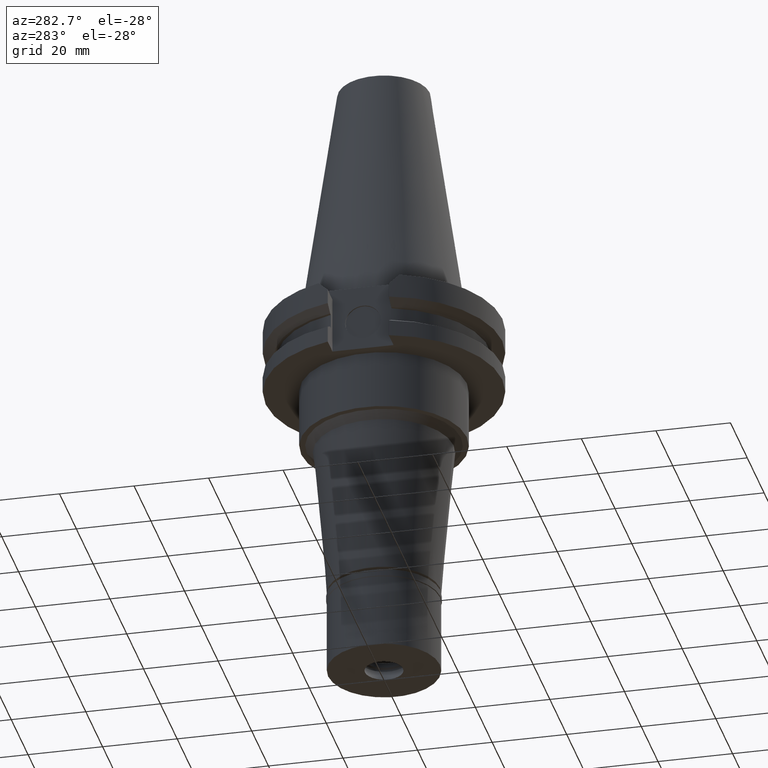
[diagram: clean part render]
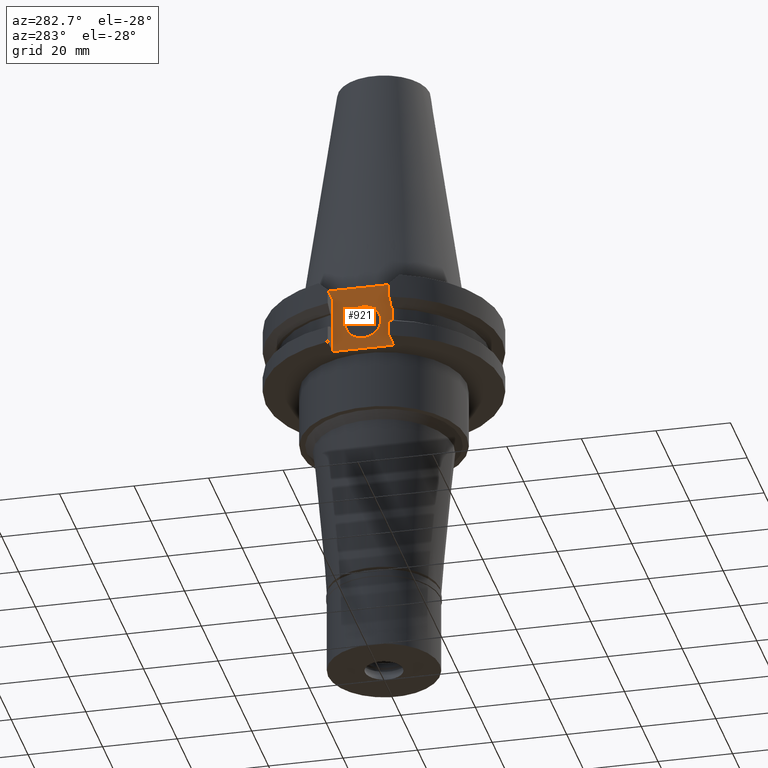
[diagram: same view with one face highlighted and labeled with its STEP entity id]
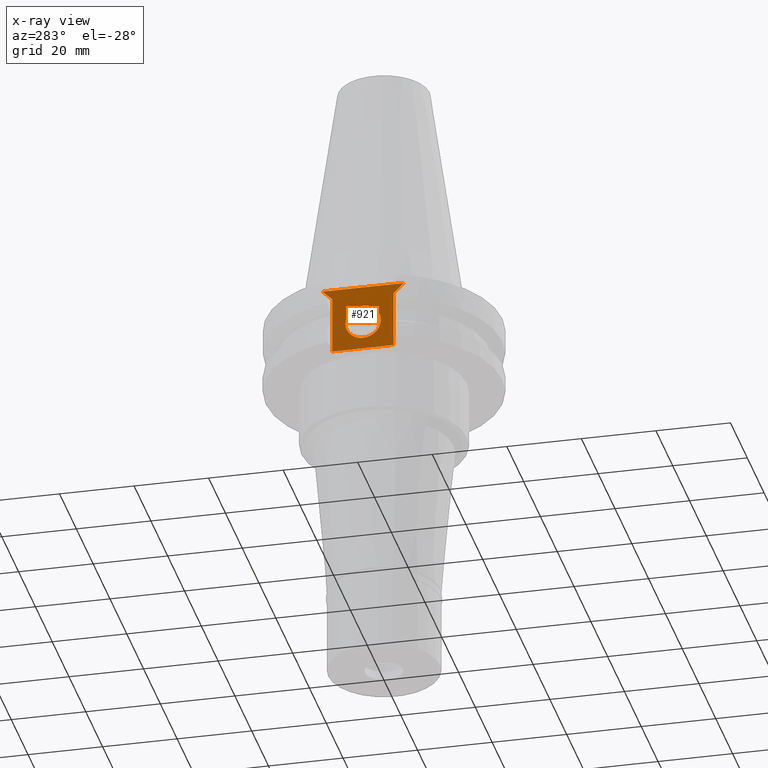
[diagram: x-ray of the same camera — body ghosted, the highlighted face saturated]
A machine part, auxiliary view. The second image highlights one B-rep face of the part: STEP entity #921.
The next image is the same camera in x-ray: the body ghosted, the highlighted face saturated — about 0% of this face is hidden behind the body in this view.
In plain terms, the highlighted planar face has unit normal (1, 0, 0).
Its self-contained STEP definition (entity closure, byte-faithful):
#161 = AXIS2_PLACEMENT_3D ( 'NONE', #2924, #1171, #2997 ) ;
#183 = CARTESIAN_POINT ( 'NONE',  ( -24.98000000000000043, -8.189999999999999503, -19.05000000000000071 ) ) ;
#336 = CARTESIAN_POINT ( 'NONE',  ( -24.98000000000000043, 4.762500000000000178, -11.18000000000000149 ) ) ;
#347 = ORIENTED_EDGE ( 'NONE', *, *, #2015, .F. ) ;
#376 = EDGE_CURVE ( 'NONE', #558, #2594, #843, .T. ) ;
#386 = ORIENTED_EDGE ( 'NONE', *, *, #2966, .F. ) ;
#421 = LINE ( 'NONE', #3046, #1424 ) ;
#435 = VERTEX_POINT ( 'NONE', #2696 ) ;
#456 = CARTESIAN_POINT ( 'NONE',  ( -24.98000000000000043, 10.89000000000000057, -1.000000000000000000 ) ) ;
#543 = EDGE_LOOP ( 'NONE', ( #3184, #2235, #676, #347, #2522, #1452 ) ) ;
#558 = VERTEX_POINT ( 'NONE', #1732 ) ;
#583 = DIRECTION ( 'NONE',  ( 0.0000000000000000000, 0.0000000000000000000, -1.000000000000000000 ) ) ;
#592 = EDGE_CURVE ( 'NONE', #2594, #2220, #702, .T. ) ;
#647 = VECTOR ( 'NONE', #583, 1000.000000000000000 ) ;
#676 = ORIENTED_EDGE ( 'NONE', *, *, #1570, .F. ) ;
#702 = LINE ( 'NONE', #773, #1417 ) ;
#773 = CARTESIAN_POINT ( 'NONE',  ( -24.98000000000000043, 8.189999999999999503, -19.05000000000000071 ) ) ;
#817 = DIRECTION ( 'NONE',  ( 1.000000000000000000, 0.0000000000000000000, 0.0000000000000000000 ) ) ;
#843 = LINE ( 'NONE', #2914, #647 ) ;
#909 = ORIENTED_EDGE ( 'NONE', *, *, #970, .F. ) ;
#921 = ADVANCED_FACE ( 'NONE', ( #1876, #3070 ), #3155, .F. ) ;
#970 = EDGE_CURVE ( 'NONE', #2433, #987, #1534, .T. ) ;
#987 = VERTEX_POINT ( 'NONE', #336 ) ;
#991 = CARTESIAN_POINT ( 'NONE',  ( -24.98000000000000043, -4.762500000000000178, -11.18000000000000149 ) ) ;
#1127 = EDGE_CURVE ( 'NONE', #435, #2145, #421, .T. ) ;
#1171 = DIRECTION ( 'NONE',  ( -1.000000000000000000, 0.0000000000000000000, 0.0000000000000000000 ) ) ;
#1223 = CARTESIAN_POINT ( 'NONE',  ( -24.98000000000000043, 0.0000000000000000000, -11.18000000000000149 ) ) ;
#1409 = CARTESIAN_POINT ( 'NONE',  ( -24.98000000000000043, 10.89000000000000057, -1.000000000000000000 ) ) ;
#1417 = VECTOR ( 'NONE', #2816, 1000.000000000000000 ) ;
#1424 = VECTOR ( 'NONE', #2044, 1000.000000000000114 ) ;
#1452 = ORIENTED_EDGE ( 'NONE', *, *, #592, .T. ) ;
#1485 = CARTESIAN_POINT ( 'NONE',  ( -24.98000000000000043, -8.189999999999999503, -19.05000000000000071 ) ) ;
#1514 = CIRCLE ( 'NONE', #1571, 4.762500000000000178 ) ;
#1534 = CIRCLE ( 'NONE', #161, 4.762500000000000178 ) ;
#1570 = EDGE_CURVE ( 'NONE', #3355, #435, #1648, .T. ) ;
#1571 = AXIS2_PLACEMENT_3D ( 'NONE', #1223, #2263, #3308 ) ;
#1643 = CARTESIAN_POINT ( 'NONE',  ( -24.98000000000000043, 8.189999999999999503, -3.700000000000000178 ) ) ;
#1648 = LINE ( 'NONE', #1409, #2752 ) ;
#1732 = CARTESIAN_POINT ( 'NONE',  ( -24.98000000000000043, 8.189999999999999503, -3.700000000000000178 ) ) ;
#1745 = DIRECTION ( 'NONE',  ( 0.0000000000000000000, 0.0000000000000000000, 1.000000000000000000 ) ) ;
#1876 = FACE_OUTER_BOUND ( 'NONE', #543, .T. ) ;
#1883 = LINE ( 'NONE', #1643, #3245 ) ;
#2015 = EDGE_CURVE ( 'NONE', #558, #3355, #1883, .T. ) ;
#2044 = DIRECTION ( 'NONE',  ( 0.0000000000000000000, 0.7071067811865474617, -0.7071067811865474617 ) ) ;
#2137 = CARTESIAN_POINT ( 'NONE',  ( -24.98000000000000043, 8.189999999999999503, -19.05000000000000071 ) ) ;
#2140 = DIRECTION ( 'NONE',  ( 0.0000000000000000000, 0.7071067811865474617, 0.7071067811865474617 ) ) ;
#2145 = VERTEX_POINT ( 'NONE', #2712 ) ;
#2220 = VERTEX_POINT ( 'NONE', #1485 ) ;
#2235 = ORIENTED_EDGE ( 'NONE', *, *, #1127, .F. ) ;
#2263 = DIRECTION ( 'NONE',  ( -1.000000000000000000, 0.0000000000000000000, 0.0000000000000000000 ) ) ;
#2305 = EDGE_CURVE ( 'NONE', #2220, #2145, #3290, .T. ) ;
#2433 = VERTEX_POINT ( 'NONE', #991 ) ;
#2451 = DIRECTION ( 'NONE',  ( 0.0000000000000000000, -1.000000000000000000, 0.0000000000000000000 ) ) ;
#2522 = ORIENTED_EDGE ( 'NONE', *, *, #376, .T. ) ;
#2567 = CARTESIAN_POINT ( 'NONE',  ( -24.98000000000000043, 0.0000000000000000000, 0.0000000000000000000 ) ) ;
#2594 = VERTEX_POINT ( 'NONE', #2137 ) ;
#2601 = VECTOR ( 'NONE', #1745, 1000.000000000000000 ) ;
#2673 = EDGE_LOOP ( 'NONE', ( #909, #386 ) ) ;
#2696 = CARTESIAN_POINT ( 'NONE',  ( -24.98000000000000043, -10.89000000000000057, -1.000000000000000000 ) ) ;
#2712 = CARTESIAN_POINT ( 'NONE',  ( -24.98000000000000043, -8.189999999999999503, -3.700000000000000178 ) ) ;
#2752 = VECTOR ( 'NONE', #2451, 1000.000000000000000 ) ;
#2816 = DIRECTION ( 'NONE',  ( 0.0000000000000000000, -1.000000000000000000, 0.0000000000000000000 ) ) ;
#2914 = CARTESIAN_POINT ( 'NONE',  ( -24.98000000000000043, 8.189999999999999503, -3.700000000000000178 ) ) ;
#2924 = CARTESIAN_POINT ( 'NONE',  ( -24.98000000000000043, 0.0000000000000000000, -11.18000000000000149 ) ) ;
#2966 = EDGE_CURVE ( 'NONE', #987, #2433, #1514, .T. ) ;
#2997 = DIRECTION ( 'NONE',  ( 0.0000000000000000000, -1.000000000000000000, 0.0000000000000000000 ) ) ;
#3046 = CARTESIAN_POINT ( 'NONE',  ( -24.98000000000000043, -10.89000000000000057, -1.000000000000000000 ) ) ;
#3070 = FACE_BOUND ( 'NONE', #2673, .T. ) ;
#3087 = DIRECTION ( 'NONE',  ( 0.0000000000000000000, 1.000000000000000000, 0.0000000000000000000 ) ) ;
#3155 = PLANE ( 'NONE',  #3372 ) ;
#3184 = ORIENTED_EDGE ( 'NONE', *, *, #2305, .T. ) ;
#3245 = VECTOR ( 'NONE', #2140, 1000.000000000000114 ) ;
#3290 = LINE ( 'NONE', #183, #2601 ) ;
#3308 = DIRECTION ( 'NONE',  ( 0.0000000000000000000, 1.000000000000000000, 0.0000000000000000000 ) ) ;
#3355 = VERTEX_POINT ( 'NONE', #456 ) ;
#3372 = AXIS2_PLACEMENT_3D ( 'NONE', #2567, #817, #3087 ) ;